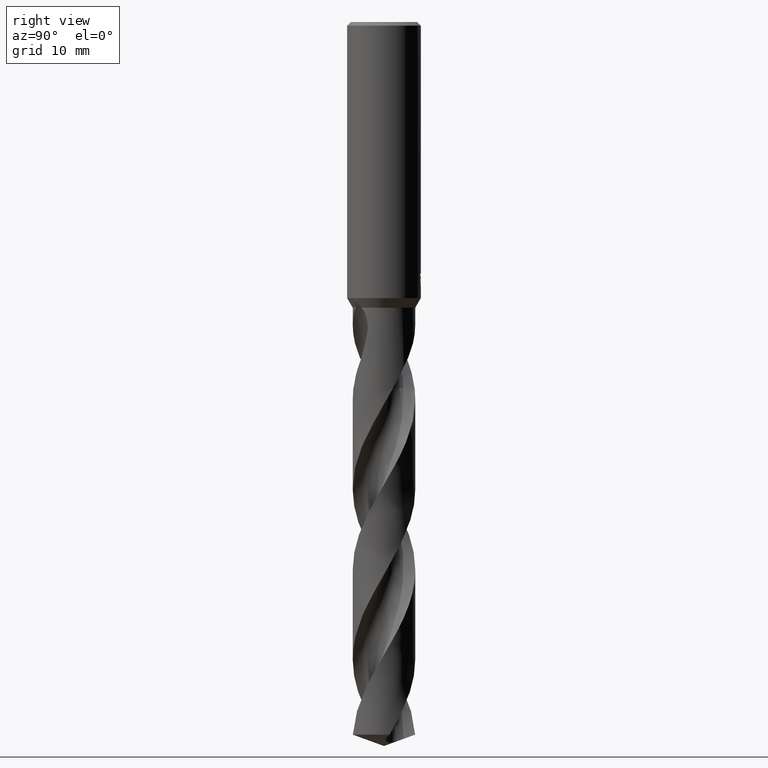
[diagram: clean part render]
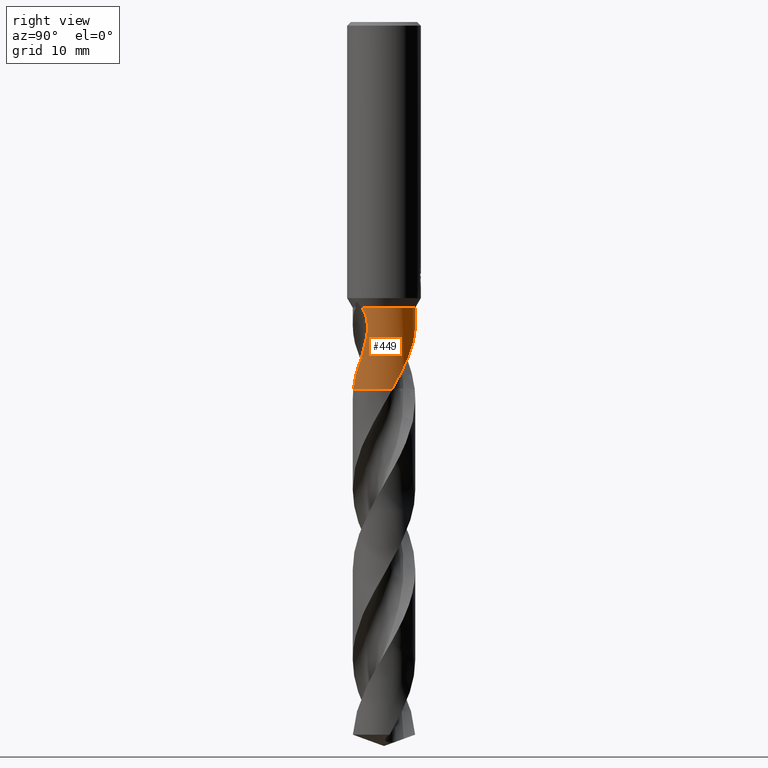
[diagram: same view with one face highlighted and labeled with its STEP entity id]
A machine part, right view. The second image highlights one B-rep face of the part: STEP entity #449.
In plain terms, the highlighted cylindrical surface (edge-blend (fillet) strip) has radius 5.1 mm, axis along (-0, -0, 1).
Its self-contained STEP definition (entity closure, byte-faithful):
#377=VERTEX_POINT('',#939);
#411=EDGE_CURVE('',#511,#571,#977,.T.);
#435=EDGE_CURVE('',#377,#545,#1003,.T.);
#449=ADVANCED_FACE('',(#1018),#1019,.T.);
#459=VERTEX_POINT('',#1029);
#465=EDGE_CURVE('',#545,#597,#1035,.T.);
#493=EDGE_CURVE('',#707,#377,#1065,.T.);
#505=EDGE_CURVE('',#459,#707,#1077,.T.);
#511=VERTEX_POINT('',#1084);
#545=VERTEX_POINT('',#1120);
#571=VERTEX_POINT('',#1147);
#583=EDGE_CURVE('',#737,#597,#1160,.T.);
#597=VERTEX_POINT('',#1174);
#657=EDGE_CURVE('',#737,#511,#1238,.T.);
#707=VERTEX_POINT('',#1294);
#737=VERTEX_POINT('',#1330);
#793=EDGE_CURVE('',#459,#571,#1393,.T.);
#939=CARTESIAN_POINT('',(4.1495750328572,-2.96496661814061,-51.9235408369702));
#977=B_SPLINE_CURVE_WITH_KNOTS('',3,(#3521,#3522,#3523,#3524,#3525,#3526,#3527,#3528,#3529,#3530,#3531,#3532,#3533,#3534,#3535,#3536),.UNSPECIFIED.,.F.,.F.,(4,2,2,2,2,2,2,4),(0.0,2.49871265368349,3.86306852552482,5.09883152037145,6.53449058635116,8.25904585773522,9.14442875931307,9.85916554693078),.UNSPECIFIED.);
#1003=B_SPLINE_CURVE_WITH_KNOTS('',3,(#3587,#3588,#3589,#3590),.UNSPECIFIED.,.F.,.F.,(4,4),(0.0,2.93107149281207),.UNSPECIFIED.);
#1018=FACE_OUTER_BOUND('',#3704,.T.);
#1019=CYLINDRICAL_SURFACE('',#3705,5.1);
#1029=CARTESIAN_POINT('',(-6.18398478645985E-016,5.1,-46.558845726812));
#1035=B_SPLINE_CURVE_WITH_KNOTS('',3,(#3806,#3807,#3808,#3809,#3810,#3811,#3812,#3813,#3814,#3815,#3816,#3817,#3818,#3819,#3820,#3821,#3822,#3823),.UNSPECIFIED.,.F.,.F.,(4,2,2,2,2,2,2,2,4),(0.0,1.43775844134642,1.90762068811924,2.90614816831811,4.33750990359847,4.69270510659405,5.22678367497219,5.4944446059247,5.76247431770209),.UNSPECIFIED.);
#1065=B_SPLINE_CURVE_WITH_KNOTS('',3,(#3912,#3913,#3914,#3915,#3916,#3917,#3918,#3919,#3920,#3921),.UNSPECIFIED.,.F.,.F.,(4,2,2,2,4),(0.0,0.643960085195908,1.6071412477594,2.950636363436,4.36193254909513),.UNSPECIFIED.);
#1077=CIRCLE('',#3940,5.1);
#1084=CARTESIAN_POINT('',(3.24979370895934,3.93050134832801,-54.7162));
#1120=CARTESIAN_POINT('',(3.54489444734018,-3.66656833527166,-54.7162));
#1147=CARTESIAN_POINT('',(-1.51221091417386E-012,5.09999999999999,-49.2950170409707));
#1160=CIRCLE('',#4600,5.1);
#1174=CARTESIAN_POINT('',(0.986603029789584,-5.00366010652302,-59.8));
#1238=B_SPLINE_CURVE_WITH_KNOTS('',3,(#5584,#5585,#5586,#5587,#5588,#5589,#5590,#5591,#5592,#5593,#5594,#5595,#5596,#5597,#5598,#5599),.UNSPECIFIED.,.F.,.F.,(4,2,2,2,2,2,2,4),(0.0,0.365208491185816,2.11289822438019,3.03776833924865,3.53199560203635,3.72218842199536,3.91232479627172,4.11015159610507),.UNSPECIFIED.);
#1294=CARTESIAN_POINT('',(3.55601984844784,-3.65577937483172,-46.558845726812));
#1330=CARTESIAN_POINT('',(4.90255255224734,1.40533927307718,-59.8));
#1393=LINE('',#9052,#9053);
#3521=CARTESIAN_POINT('',(3.24979370895934,3.93050134832801,-54.7162));
#3522=CARTESIAN_POINT('',(2.91337936961071,4.20865344820808,-54.0068437863814));
#3523=CARTESIAN_POINT('',(2.52657918675046,4.45591132423751,-53.3454948110928));
#3524=CARTESIAN_POINT('',(1.85211502567177,4.75897775575328,-52.2406662351026));
#3525=CARTESIAN_POINT('',(1.6094110894259,4.84615853252497,-51.8519503331035));
#3526=CARTESIAN_POINT('',(1.13956695854068,4.97645319592027,-51.0994972420555));
#3527=CARTESIAN_POINT('',(0.914524597886065,5.02248598896408,-50.7392673258812));
#3528=CARTESIAN_POINT('',(0.427402711939857,5.0889226380666,-49.9628763495345));
#3529=CARTESIAN_POINT('',(0.161254247307499,5.10452010935033,-49.5406380795033));
#3530=CARTESIAN_POINT('',(-0.429793475701438,5.09208753194541,-48.6373309534817));
#3531=CARTESIAN_POINT('',(-0.780225106218335,5.05363409028635,-48.1233392927775));
#3532=CARTESIAN_POINT('',(-1.32808361526234,4.92773369199497,-47.4362184342987));
#3533=CARTESIAN_POINT('',(-1.52837481373304,4.87063623651398,-47.2048510929327));
#3534=CARTESIAN_POINT('',(-1.90462697242847,4.73437911837781,-46.8358538615158));
#3535=CARTESIAN_POINT('',(-2.0863527850865,4.65848052431876,-46.6803704321564));
#3536=CARTESIAN_POINT('',(-2.27475090764656,4.56459289621332,-46.558845726812));
#3587=CARTESIAN_POINT('',(4.14957503290982,-2.96496661806697,-51.9235408369991));
#3588=CARTESIAN_POINT('',(3.98515523650868,-3.19507790428006,-52.8587362672319));
#3589=CARTESIAN_POINT('',(3.78698543453453,-3.4325110594258,-53.7994970068319));
#3590=CARTESIAN_POINT('',(3.54489444734017,-3.66656833527166,-54.7162));
#3704=EDGE_LOOP('',(#10003,#10004,#10005,#10006,#10007,#10008,#10009,#10010));
#3705=AXIS2_PLACEMENT_3D('',#10011,#10012,#10013);
#3806=CARTESIAN_POINT('',(3.54489444734018,-3.66656833527166,-54.7162));
#3807=CARTESIAN_POINT('',(3.38136863409562,-3.82466759713212,-55.1380378732641));
#3808=CARTESIAN_POINT('',(3.20812137384333,-3.97218901456616,-55.5431224155841));
#3809=CARTESIAN_POINT('',(2.94503848821037,-4.16451573862558,-56.0981217835754));
#3810=CARTESIAN_POINT('',(2.87896730600431,-4.21046961142095,-56.2339618351111));
#3811=CARTESIAN_POINT('',(2.66864376367485,-4.34945148359617,-56.659549304578));
#3812=CARTESIAN_POINT('',(2.5237274244743,-4.43507445822214,-56.9463747830113));
#3813=CARTESIAN_POINT('',(2.1563630936986,-4.6281599464489,-57.6669147647293));
#3814=CARTESIAN_POINT('',(1.9311733114349,-4.72669515113291,-58.0947780948059));
#3815=CARTESIAN_POINT('',(1.64030865307859,-4.82940458361881,-58.6290722011164));
#3816=CARTESIAN_POINT('',(1.58212540854021,-4.84877776161386,-58.7351152272195));
#3817=CARTESIAN_POINT('',(1.43548835697562,-4.89467965829713,-59.0007917539209));
#3818=CARTESIAN_POINT('',(1.34668976367619,-4.91985186473188,-59.1602316434579));
#3819=CARTESIAN_POINT('',(1.21243693774436,-4.95400196993175,-59.3997586333924));
#3820=CARTESIAN_POINT('',(1.16747778055045,-4.96478919897152,-59.4797186461443));
#3821=CARTESIAN_POINT('',(1.07724480398614,-4.98514650547029,-59.6397950123377));
#3822=CARTESIAN_POINT('',(1.03197582208571,-4.99471366863629,-59.719910602405));
#3823=CARTESIAN_POINT('',(0.986603029789612,-5.00366010652303,-59.8));
#3912=CARTESIAN_POINT('',(3.55601984844784,-3.65577937483172,-46.558845726812));
#3913=CARTESIAN_POINT('',(3.68252131160126,-3.53272990501738,-46.6810434088738));
#3914=CARTESIAN_POINT('',(3.78538602810321,-3.42017405881077,-46.8386167637585));
#3915=CARTESIAN_POINT('',(3.99570442707812,-3.17518373416606,-47.2675244205178));
#3916=CARTESIAN_POINT('',(4.09474051917999,-3.04294120096217,-47.5867757537071));
#3917=CARTESIAN_POINT('',(4.27138819256812,-2.7923347889661,-48.4638104716794));
#3918=CARTESIAN_POINT('',(4.32928071297352,-2.69579971593003,-49.0831729199893));
#3919=CARTESIAN_POINT('',(4.33226611864643,-2.69099956592656,-50.5032589533513));
#3920=CARTESIAN_POINT('',(4.27279607535161,-2.79251443661214,-51.2226890201039));
#3921=CARTESIAN_POINT('',(4.1495750328572,-2.96496661814061,-51.9235408369702));
#3940=AXIS2_PLACEMENT_3D('',#10041,#10042,#10043);
#4600=AXIS2_PLACEMENT_3D('',#10103,#10104,#10105);
#5584=CARTESIAN_POINT('',(4.90255255224733,1.40533927307718,-59.8));
#5585=CARTESIAN_POINT('',(4.88585317668221,1.4635953596081,-59.6944203959223));
#5586=CARTESIAN_POINT('',(4.86807177332862,1.5217157703487,-59.5883322097616));
#5587=CARTESIAN_POINT('',(4.75844320437858,1.85819938502267,-58.973738120215));
#5588=CARTESIAN_POINT('',(4.64592805511281,2.12386033635673,-58.4895264493056));
#5589=CARTESIAN_POINT('',(4.43714531569511,2.51906054497531,-57.727157608049));
#5590=CARTESIAN_POINT('',(4.35729638058076,2.65486939658756,-57.4594381538228));
#5591=CARTESIAN_POINT('',(4.22648354641699,2.85548488301213,-57.0213718928169));
#5592=CARTESIAN_POINT('',(4.18054140555615,2.92219495605494,-56.8680290503498));
#5593=CARTESIAN_POINT('',(4.11696249118177,3.01023763013552,-56.6530907454285));
#5594=CARTESIAN_POINT('',(4.06120083203709,3.08791404799794,-56.4621295028356));
#5595=CARTESIAN_POINT('',(3.89055311114846,3.30032586833802,-55.9746836245145));
#5596=CARTESIAN_POINT('',(3.78776964429547,3.41932750828377,-55.7121061756815));
#5597=CARTESIAN_POINT('',(3.54645647611967,3.66933771547696,-55.2021753312747));
#5598=CARTESIAN_POINT('',(3.40742606015567,3.80016870680272,-54.9551354816366));
#5599=CARTESIAN_POINT('',(3.24979370895934,3.93050134832801,-54.7162));
#9052=CARTESIAN_POINT('',(-6.18398478645985E-016,5.1,-53.179422863406));
#9053=VECTOR('',#10348,1.0);
#10003=ORIENTED_EDGE('',*,*,#793,.F.);
#10004=ORIENTED_EDGE('',*,*,#505,.T.);
#10005=ORIENTED_EDGE('',*,*,#493,.T.);
#10006=ORIENTED_EDGE('',*,*,#435,.T.);
#10007=ORIENTED_EDGE('',*,*,#465,.T.);
#10008=ORIENTED_EDGE('',*,*,#583,.F.);
#10009=ORIENTED_EDGE('',*,*,#657,.T.);
#10010=ORIENTED_EDGE('',*,*,#411,.T.);
#10011=CARTESIAN_POINT('',(0.0,0.0,-53.179422863406));
#10012=DIRECTION('',(-0.0,-0.0,1.0));
#10013=DIRECTION('',(0.0,1.0,0.0));
#10041=CARTESIAN_POINT('',(0.0,0.0,-46.558845726812));
#10042=DIRECTION('',(0.0,0.0,-1.0));
#10043=DIRECTION('',(0.0,1.0,0.0));
#10103=CARTESIAN_POINT('',(0.0,0.0,-59.8));
#10104=DIRECTION('',(0.0,0.0,-1.0));
#10105=DIRECTION('',(0.0,1.0,0.0));
#10348=DIRECTION('',(0.0,0.0,-1.0));